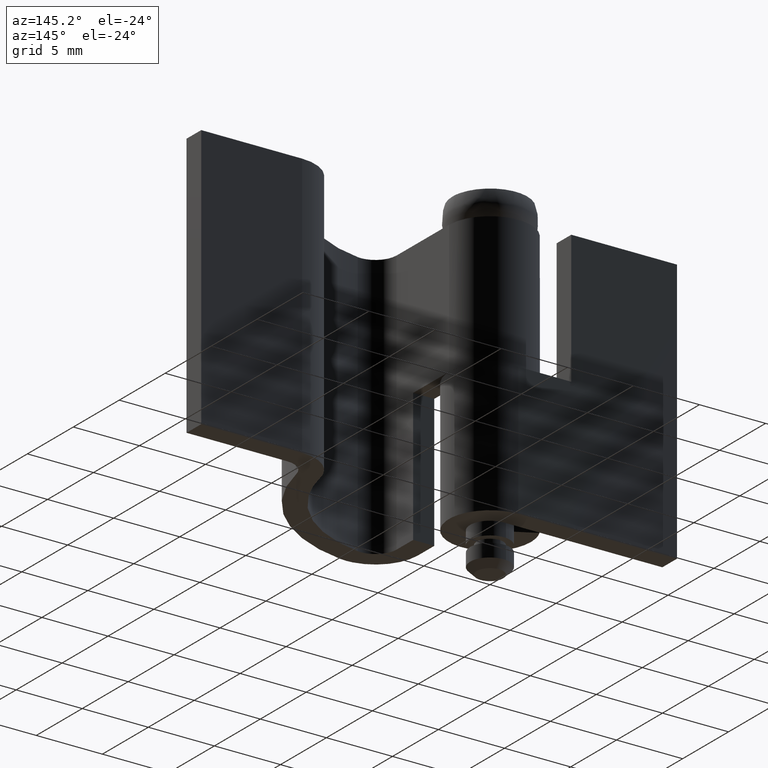
[diagram: clean part render]
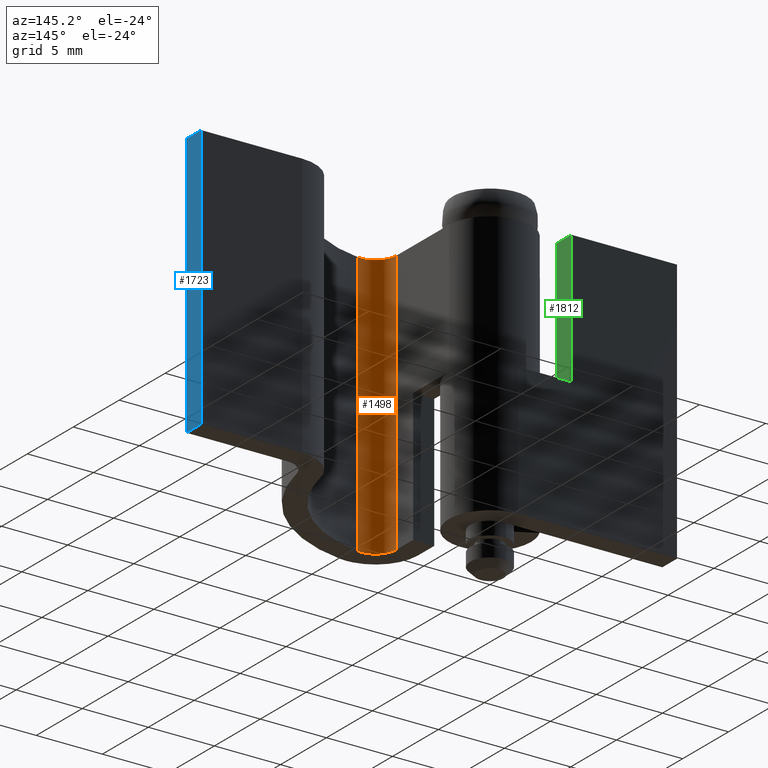
[diagram: same view with three faces highlighted in distinct colors, each labeled with its STEP entity id]
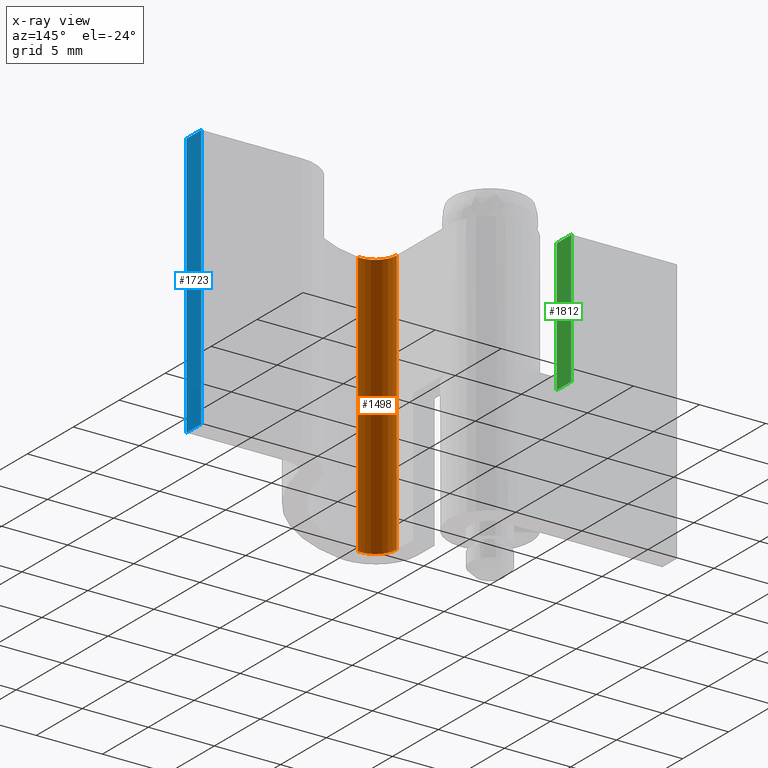
[diagram: x-ray of the same camera — body ghosted, the three highlighted faces saturated]
A machine part, auxiliary view with three faces highlighted in distinct colors.
The next image is the same camera in x-ray (body ghosted, the three faces saturated) — at least one of them is partly hidden behind the body in this view.
Their STEP definitions:

[orange] entity #1498 — the highlighted face is a freeform B-spline surface patch.
#1127=CARTESIAN_POINT('',(4.937532755765070,-7.282296498136510,23.0));
#1128=VERTEX_POINT('',#1127);
#1142=CARTESIAN_POINT('',(3.099999000000040,-5.702556821337891,23.0));
#1143=VERTEX_POINT('',#1142);
#1144=CARTESIAN_POINT('',(3.099999000000000,-5.702556821337891,23.0));
#1145=CARTESIAN_POINT('',(3.101157871460675,-6.435490800337166,23.000000000000004));
#1146=CARTESIAN_POINT('',(3.656938898380362,-6.913299350565048,23.0));
#1147=CARTESIAN_POINT('',(4.212719925300048,-7.391107900792932,23.000000000000004));
#1148=CARTESIAN_POINT('',(4.937532755765067,-7.282296498136496,23.0));
#1156=(BOUNDED_CURVE()B_SPLINE_CURVE(2,(#1144,#1145,#1146,#1147,#1148),.UNSPECIFIED.,.F.,.U.)B_SPLINE_CURVE_WITH_KNOTS((3,2,3),(0.0,0.500000000000000,1.0),.UNSPECIFIED.)CURVE()GEOMETRIC_REPRESENTATION_ITEM()RATIONAL_B_SPLINE_CURVE((1.0,0.909150556361321,1.0,0.909150556361321,1.0))REPRESENTATION_ITEM(''));
#1157=EDGE_CURVE('',#1143,#1128,#1156,.T.);
#1297=CARTESIAN_POINT('',(3.099999000000040,-5.702556821337891,3.0));
#1298=VERTEX_POINT('',#1297);
#1304=CARTESIAN_POINT('',(4.937532755765070,-7.282296498136510,3.0));
#1305=VERTEX_POINT('',#1304);
#1306=CARTESIAN_POINT('',(3.099999000000040,-5.702556821337891,3.0));
#1307=CARTESIAN_POINT('',(3.101157871460675,-6.435490800337166,3.000000000000000));
#1308=CARTESIAN_POINT('',(3.656938898380362,-6.913299350565048,3.0));
#1309=CARTESIAN_POINT('',(4.212719925300048,-7.391107900792932,3.000000000000000));
#1310=CARTESIAN_POINT('',(4.937532755765067,-7.282296498136496,3.0));
#1318=(BOUNDED_CURVE()B_SPLINE_CURVE(2,(#1306,#1307,#1308,#1309,#1310),.UNSPECIFIED.,.F.,.U.)B_SPLINE_CURVE_WITH_KNOTS((3,2,3),(0.0,0.500000000000000,1.0),.UNSPECIFIED.)CURVE()GEOMETRIC_REPRESENTATION_ITEM()RATIONAL_B_SPLINE_CURVE((1.0,0.909150556361321,1.0,0.909150556361321,1.0))REPRESENTATION_ITEM(''));
#1319=EDGE_CURVE('',#1298,#1305,#1318,.T.);
#1466=CARTESIAN_POINT('',(4.937532755765070,-7.282296498136510,3.0));
#1467=CARTESIAN_POINT('',(4.937532755765070,-7.282296498136510,23.0));
#1468=QUASI_UNIFORM_CURVE('',1,(#1466,#1467),.UNSPECIFIED.,.F.,.U.);
#1469=EDGE_CURVE('',#1305,#1128,#1468,.T.);
#1474=CARTESIAN_POINT('',(4.994060935562127,-7.272771862271599,2.499999999999999));
#1475=CARTESIAN_POINT('',(4.994060935562127,-7.272771862271599,23.512499999999999));
#1476=CARTESIAN_POINT('',(2.951741301434656,-7.654634530333274,2.499999999999999));
#1477=CARTESIAN_POINT('',(2.951741301434656,-7.654634530333274,23.512499999999999));
#1478=CARTESIAN_POINT('',(3.104316924267131,-5.582531911127597,2.500000000000000));
#1479=CARTESIAN_POINT('',(3.104316924267131,-5.582531911127597,23.512499999999999));
#1487=(BOUNDED_SURFACE()B_SPLINE_SURFACE(1,2,((#1474,#1476,#1478),(#1475,#1477,#1479)),.UNSPECIFIED.,.F.,.F.,.U.)B_SPLINE_SURFACE_WITH_KNOTS((2,2),(3,3),(0.0,21.012500000000010),(0.0,3.149254443199296),.UNSPECIFIED.)GEOMETRIC_REPRESENTATION_ITEM()RATIONAL_B_SPLINE_SURFACE(((1.0,0.609613372957644,0.998299822413692),(1.0,0.609613372957644,0.998299822413692)))REPRESENTATION_ITEM('')SURFACE());
#1488=ORIENTED_EDGE('',*,*,#1157,.T.);
#1489=ORIENTED_EDGE('',*,*,#1469,.F.);
#1490=ORIENTED_EDGE('',*,*,#1319,.F.);
#1491=CARTESIAN_POINT('',(3.099999000000040,-5.702556821337891,3.0));
#1492=CARTESIAN_POINT('',(3.099999000000040,-5.702556821337891,23.0));
#1493=QUASI_UNIFORM_CURVE('',1,(#1491,#1492),.UNSPECIFIED.,.F.,.U.);
#1494=EDGE_CURVE('',#1298,#1143,#1493,.T.);
#1495=ORIENTED_EDGE('',*,*,#1494,.T.);
#1496=EDGE_LOOP('',(#1488,#1489,#1490,#1495));
#1497=FACE_OUTER_BOUND('',#1496,.T.);
#1498=ADVANCED_FACE('',(#1497),#1487,.F.);

[blue] entity #1723 — the highlighted face is a freeform B-spline surface patch.
#1105=CARTESIAN_POINT('',(24.0,3.099976000000000,23.0));
#1106=VERTEX_POINT('',#1105);
#1269=CARTESIAN_POINT('',(24.0,1.499969999999904,23.0));
#1270=VERTEX_POINT('',#1269);
#1276=CARTESIAN_POINT('',(24.0,3.099976000000000,23.0));
#1277=CARTESIAN_POINT('',(24.0,1.499969999999904,23.0));
#1278=QUASI_UNIFORM_CURVE('',1,(#1276,#1277),.UNSPECIFIED.,.F.,.U.);
#1279=EDGE_CURVE('',#1106,#1270,#1278,.T.);
#1351=CARTESIAN_POINT('',(24.0,3.099976000000000,3.0));
#1352=VERTEX_POINT('',#1351);
#1358=CARTESIAN_POINT('',(24.0,1.499969999999904,3.0));
#1359=VERTEX_POINT('',#1358);
#1360=CARTESIAN_POINT('',(24.0,3.099976000000000,3.0));
#1361=CARTESIAN_POINT('',(24.0,1.499969999999904,3.0));
#1362=QUASI_UNIFORM_CURVE('',1,(#1360,#1361),.UNSPECIFIED.,.F.,.U.);
#1363=EDGE_CURVE('',#1352,#1359,#1362,.T.);
#1700=CARTESIAN_POINT('',(24.0,1.499969999999904,3.0));
#1701=CARTESIAN_POINT('',(24.0,1.499969999999904,23.0));
#1702=QUASI_UNIFORM_CURVE('',1,(#1700,#1701),.UNSPECIFIED.,.F.,.U.);
#1703=EDGE_CURVE('',#1359,#1270,#1702,.T.);
#1708=CARTESIAN_POINT('',(24.0,1.420049658341887,2.001000038763880));
#1709=CARTESIAN_POINT('',(24.0,1.420049658341887,23.999000497677919));
#1710=CARTESIAN_POINT('',(24.0,3.179896341658017,2.001000038763880));
#1711=CARTESIAN_POINT('',(24.0,3.179896341658017,23.999000497677919));
#1712=B_SPLINE_SURFACE_WITH_KNOTS('',1,1,((#1708,#1710),(#1709,#1711)),.UNSPECIFIED.,.F.,.F.,.U.,(2,2),(2,2),(0.0,21.998000458914039),(0.041708311480284,0.958291688519716),.UNSPECIFIED.);
#1713=ORIENTED_EDGE('',*,*,#1279,.T.);
#1714=ORIENTED_EDGE('',*,*,#1703,.F.);
#1715=ORIENTED_EDGE('',*,*,#1363,.F.);
#1716=CARTESIAN_POINT('',(24.0,3.099976000000000,3.0));
#1717=CARTESIAN_POINT('',(24.0,3.099976000000000,23.0));
#1718=QUASI_UNIFORM_CURVE('',1,(#1716,#1717),.UNSPECIFIED.,.F.,.U.);
#1719=EDGE_CURVE('',#1352,#1106,#1718,.T.);
#1720=ORIENTED_EDGE('',*,*,#1719,.T.);
#1721=EDGE_LOOP('',(#1713,#1714,#1715,#1720));
#1722=FACE_OUTER_BOUND('',#1721,.T.);
#1723=ADVANCED_FACE('',(#1722),#1712,.F.);

[green] entity #1812 — the highlighted face is a freeform B-spline surface patch.
#1777=CARTESIAN_POINT('',(-4.0,1.420080103001048,12.500500019381940));
#1778=CARTESIAN_POINT('',(-4.0,1.420080103001048,23.499500248838970));
#1779=CARTESIAN_POINT('',(-4.0,3.179917939914239,12.500500019381940));
#1780=CARTESIAN_POINT('',(-4.0,3.179917939914239,23.499500248838970));
#1781=B_SPLINE_SURFACE_WITH_KNOTS('',1,1,((#1777,#1779),(#1778,#1780)),.UNSPECIFIED.,.F.,.F.,.U.,(2,2),(2,2),(0.0,10.999000229457030),(0.041708334948495,0.958291687403247),.UNSPECIFIED.);
#1782=CARTESIAN_POINT('',(-4.0,1.499999999999946,23.0));
#1783=VERTEX_POINT('',#1782);
#1784=CARTESIAN_POINT('',(-4.0,1.499999999999946,13.0));
#1785=VERTEX_POINT('',#1784);
#1786=CARTESIAN_POINT('',(-4.0,1.499999999999946,23.0));
#1787=CARTESIAN_POINT('',(-4.0,1.499999999999946,13.0));
#1788=QUASI_UNIFORM_CURVE('',1,(#1786,#1787),.UNSPECIFIED.,.F.,.U.);
#1789=EDGE_CURVE('',#1783,#1785,#1788,.T.);
#1790=ORIENTED_EDGE('',*,*,#1789,.T.);
#1791=CARTESIAN_POINT('',(-4.0,3.099998000000050,13.0));
#1792=VERTEX_POINT('',#1791);
#1793=CARTESIAN_POINT('',(-4.0,1.499999999999946,13.0));
#1794=CARTESIAN_POINT('',(-4.0,3.099998000000050,13.0));
#1795=QUASI_UNIFORM_CURVE('',1,(#1793,#1794),.UNSPECIFIED.,.F.,.U.);
#1796=EDGE_CURVE('',#1785,#1792,#1795,.T.);
#1797=ORIENTED_EDGE('',*,*,#1796,.T.);
#1798=CARTESIAN_POINT('',(-4.0,3.099998000000000,23.0));
#1799=VERTEX_POINT('',#1798);
#1800=CARTESIAN_POINT('',(-4.0,3.099998000000050,13.0));
#1801=CARTESIAN_POINT('',(-4.0,3.099998000000000,23.0));
#1802=QUASI_UNIFORM_CURVE('',1,(#1800,#1801),.UNSPECIFIED.,.F.,.U.);
#1803=EDGE_CURVE('',#1792,#1799,#1802,.T.);
#1804=ORIENTED_EDGE('',*,*,#1803,.T.);
#1805=CARTESIAN_POINT('',(-4.0,1.499999999999946,23.0));
#1806=CARTESIAN_POINT('',(-4.0,3.099998000000000,23.0));
#1807=QUASI_UNIFORM_CURVE('',1,(#1805,#1806),.UNSPECIFIED.,.F.,.U.);
#1808=EDGE_CURVE('',#1783,#1799,#1807,.T.);
#1809=ORIENTED_EDGE('',*,*,#1808,.F.);
#1810=EDGE_LOOP('',(#1790,#1797,#1804,#1809));
#1811=FACE_OUTER_BOUND('',#1810,.T.);
#1812=ADVANCED_FACE('',(#1811),#1781,.F.);